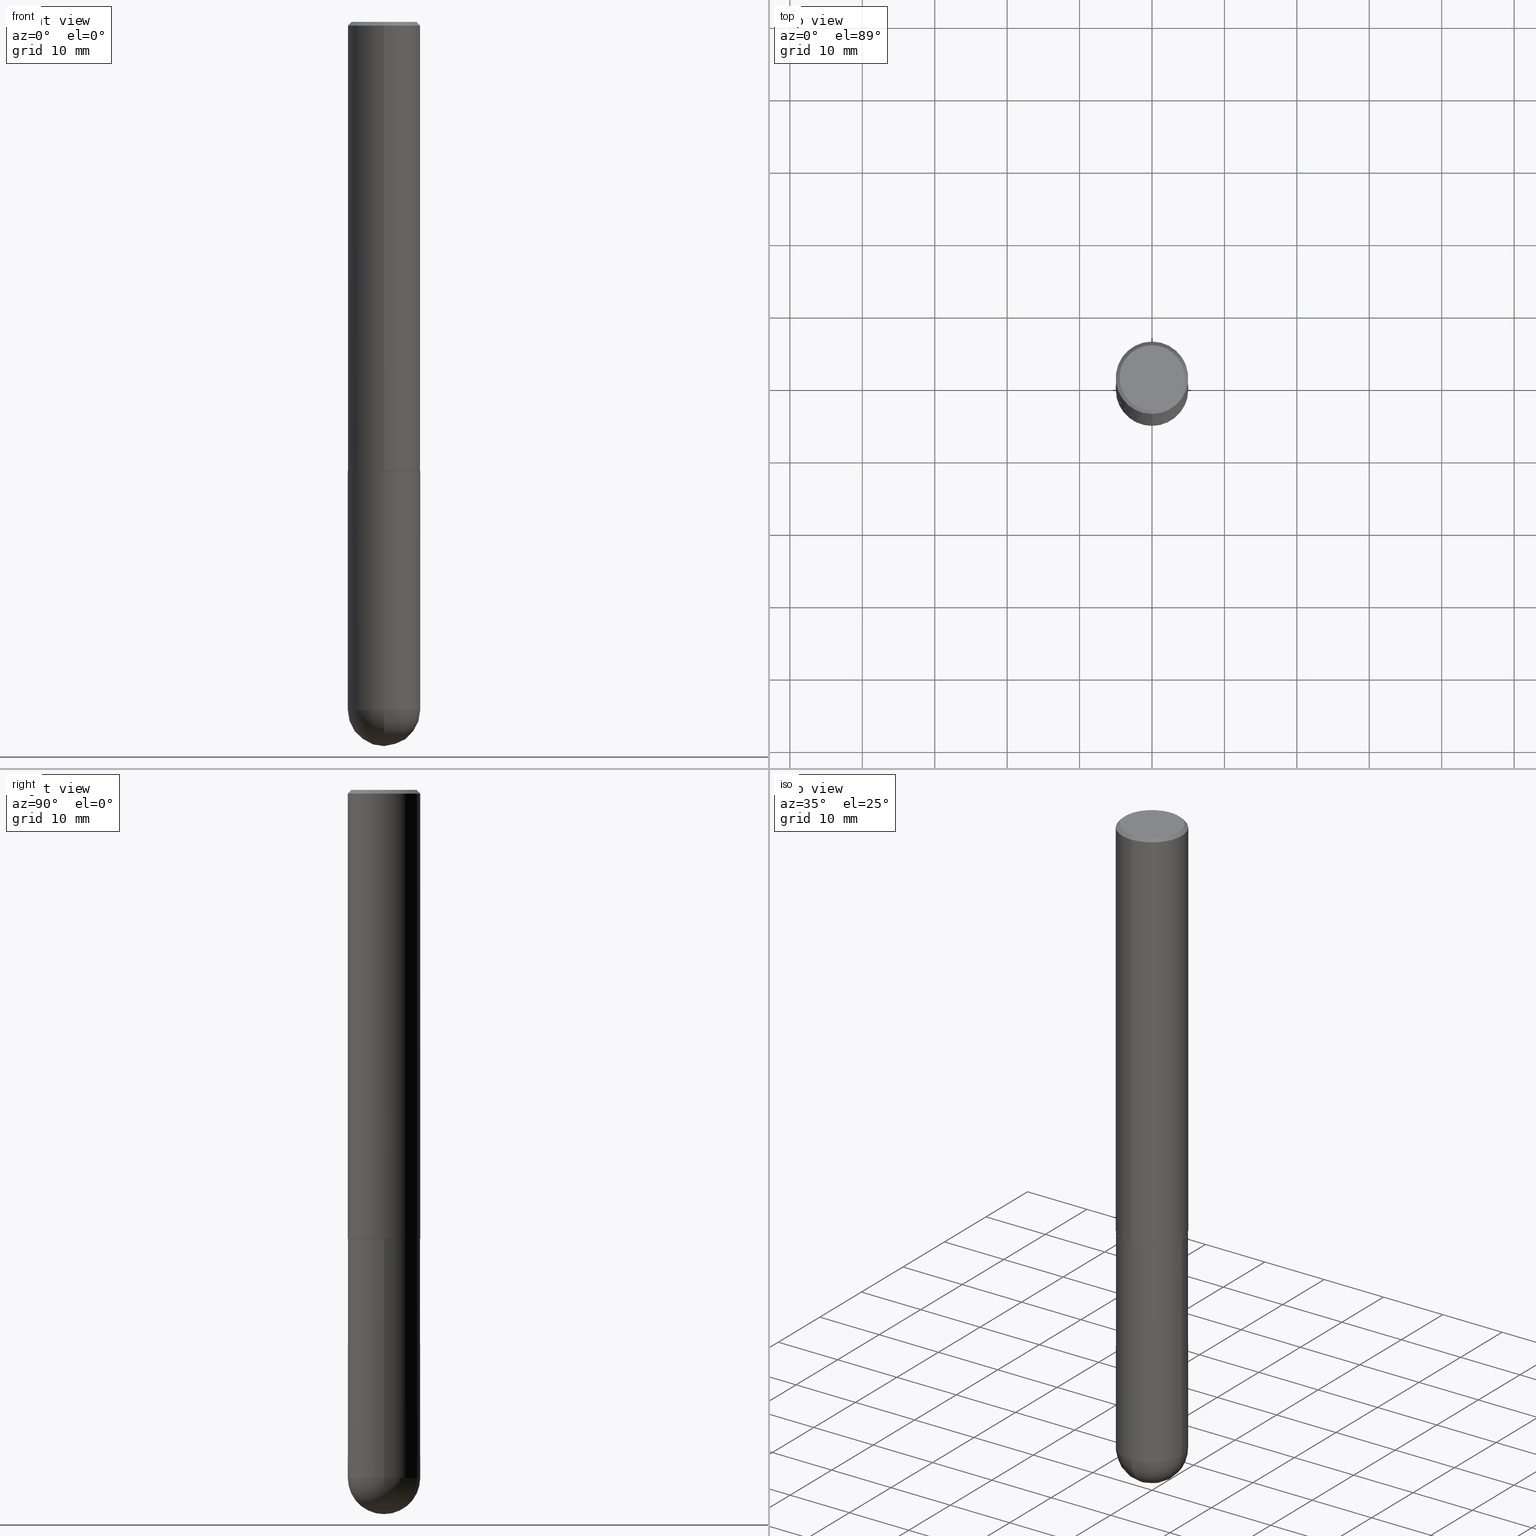
[diagram: canonical four-view strip — front | top / right | iso, engineering-drawing reading convention]
A machine part, canonical four-view strip (front | top / right | iso — engineering-drawing reading convention). The complete STEP part file that produces these views, byte-faithful:
ISO-10303-21;
HEADER;
FILE_DESCRIPTION (( 'STEP AP203' ),
    '1' );
FILE_NAME ('43526.STEP',
    '2024-04-10T11:44:03',
    ( '' ),
    ( '' ),
    'SwSTEP 2.0',
    'SolidWorks 2023',
    '' );
FILE_SCHEMA (( 'CONFIG_CONTROL_DESIGN' ));
ENDSEC;

DATA;
#1 = AXIS2_PLACEMENT_3D ( 'NONE', #242, #405, #209 ) ;
#2 = CARTESIAN_POINT ( 'NONE',  ( 2.498110473991731681E-45, -3.569528848921481712E-31, -1.021939325893990642E-16 ) ) ;
#3 = DIRECTION ( 'NONE',  ( -2.444480225679141495E-29, 3.492897042394238758E-15, 1.000000000000000000 ) ) ;
#4 = DIRECTION ( 'NONE',  ( -1.000000000000000000, 6.982962677686265922E-15, -4.883557194083113462E-29 ) ) ;
#5 = DIRECTION ( 'NONE',  ( -2.445468806185136597E-29, 3.491481338843145583E-15, 1.000000000000000000 ) ) ;
#6 = FACE_OUTER_BOUND ( 'NONE', #410, .T. ) ;
#7 = CLOSED_SHELL ( 'NONE', ( #302, #285, #235, #133, #246, #38, #364, #219 ) ) ;
#8 = DIRECTION ( 'NONE',  ( 1.000000000000000000, 0.000000000000000000, 0.000000000000000000 ) ) ;
#9 = DIRECTION ( 'NONE',  ( -2.444480225679141495E-29, 3.492897042394238758E-15, 1.000000000000000000 ) ) ;
#10 = AXIS2_PLACEMENT_3D ( 'NONE', #39, #4, #392 ) ;
#11 = PERSON_AND_ORGANIZATION ( #183, #92 ) ;
#12 = DIRECTION ( 'NONE',  ( 6.982962677686265133E-15, 1.000000000000000000, -3.491137977679279029E-15 ) ) ;
#13 = CARTESIAN_POINT ( 'NONE',  ( 8.815300377539453183E-29, -1.353284629761424370E-14, -3.740150000000000308 ) ) ;
#14 = APPROVAL_DATE_TIME ( #386, #115 ) ;
#15 = DIRECTION ( 'NONE',  ( 1.000000000000000000, -6.982962677686262766E-15, 0.000000000000000000 ) ) ;
#16 = CC_DESIGN_DATE_AND_TIME_ASSIGNMENT ( #136, #329, ( #311 ) ) ;
#17 = CYLINDRICAL_SURFACE ( 'NONE', #1, 0.1968500000000001915 ) ;
#18 = VERTEX_POINT ( 'NONE', #188 ) ;
#19 = MANIFOLD_SOLID_BREP ( 'Body-Move/Copy2[1]', #57 ) ;
#20 = FACE_OUTER_BOUND ( 'NONE', #273, .T. ) ;
#21 = AXIS2_PLACEMENT_3D ( 'NONE', #348, #249, #282 ) ;
#22 = AXIS2_PLACEMENT_3D ( 'NONE', #217, #349, #220 ) ;
#23 = CARTESIAN_POINT ( 'NONE',  ( -0.1968500000000000250, -9.391806989384456184E-15, -2.440900000000000070 ) ) ;
#24 = EDGE_CURVE ( 'NONE', #255, #179, #284, .T. ) ;
#25 = ORIENTED_EDGE ( 'NONE', *, *, #62, .T. ) ;
#26 = ORIENTED_EDGE ( 'NONE', *, *, #298, .T. ) ;
#27 = COORDINATED_UNIVERSAL_TIME_OFFSET ( 5, 0, .BEHIND. ) ;
#28 = CARTESIAN_POINT ( 'NONE',  ( 0.000000000000000000, 0.000000000000000000, 0.000000000000000000 ) ) ;
#29 = VERTEX_POINT ( 'NONE', #33 ) ;
#30 = PERSON_AND_ORGANIZATION ( #183, #92 ) ;
#31 = EDGE_CURVE ( 'NONE', #339, #29, #198, .T. ) ;
#32 = PRODUCT_DEFINITION_FORMATION_WITH_SPECIFIED_SOURCE ( 'ANY', '', #180, .NOT_KNOWN. ) ;
#33 = CARTESIAN_POINT ( 'NONE',  ( -1.374596203102484021E-15, -0.1968500000000088512, -2.439899999999998847 ) ) ;
#34 = DIRECTION ( 'NONE',  ( -2.444480225679141495E-29, 3.492897042394238758E-15, 1.000000000000000000 ) ) ;
#35 = CARTESIAN_POINT ( 'NONE',  ( 5.964287302634537555E-29, -8.522319493737701952E-15, -2.439899999999999736 ) ) ;
#36 = AXIS2_PLACEMENT_3D ( 'NONE', #336, #55, #211 ) ;
#37 = DIRECTION ( 'NONE',  ( -1.000000000000000000, 6.982962677686265922E-15, -4.876176775795935793E-29 ) ) ;
#38 = ADVANCED_FACE ( 'NONE', ( #317 ), #343, .T. ) ;
#39 = CARTESIAN_POINT ( 'NONE',  ( 8.815300377539453183E-29, -1.353284629761424370E-14, -3.740150000000000308 ) ) ;
#40 = DIRECTION ( 'NONE',  ( 2.444480225679141495E-29, -3.492897042394238758E-15, -1.000000000000000000 ) ) ;
#41 = CARTESIAN_POINT ( 'NONE',  ( -1.374596203102542594E-15, -0.1968500000000001915, 6.875767827953065398E-16 ) ) ;
#42 =( NAMED_UNIT ( * ) PLANE_ANGLE_UNIT ( ) SI_UNIT ( $, .RADIAN. ) );
#43 = LINE ( 'NONE', #323, #52 ) ;
#44 = APPLICATION_PROTOCOL_DEFINITION ( 'international standard', 'config_control_design', 1994, #144 ) ;
#45 = CARTESIAN_POINT ( 'NONE',  ( 5.969144809017299038E-29, -8.522356799982232966E-15, -2.440900000000000070 ) ) ;
#46 = CIRCLE ( 'NONE', #312, 0.1968500000000000527 ) ;
#47 = DIRECTION ( 'NONE',  ( 4.937700262164545676E-15, 0.7071067811865447972, -0.7071067811865502373 ) ) ;
#48 = CALENDAR_DATE ( 2024, 10, 4 ) ;
#49 = FACE_OUTER_BOUND ( 'NONE', #189, .T. ) ;
#50 = DIRECTION ( 'NONE',  ( -4.851104656540961908E-15, -0.7071067811865496822, -0.7071067811865453523 ) ) ;
#51 = EDGE_CURVE ( 'NONE', #341, #270, #127, .T. ) ;
#52 = VECTOR ( 'NONE', #137, 39.37007874015748143 ) ;
#53 = ORIENTED_EDGE ( 'NONE', *, *, #75, .F. ) ;
#54 = ORIENTED_EDGE ( 'NONE', *, *, #31, .F. ) ;
#55 = DIRECTION ( 'NONE',  ( -2.444480225679141495E-29, 3.492897042394238758E-15, 1.000000000000000000 ) ) ;
#56 = ORIENTED_EDGE ( 'NONE', *, *, #31, .T. ) ;
#57 = CLOSED_SHELL ( 'NONE', ( #68, #290, #169, #108, #385 ) ) ;
#58 = VECTOR ( 'NONE', #47, 39.37007874015748143 ) ;
#59 = ORIENTED_EDGE ( 'NONE', *, *, #370, .T. ) ;
#60 = LINE ( 'NONE', #340, #266 ) ;
#61 = ORIENTED_EDGE ( 'NONE', *, *, #298, .F. ) ;
#62 = EDGE_CURVE ( 'NONE', #148, #29, #280, .T. ) ;
#63 = ORIENTED_EDGE ( 'NONE', *, *, #118, .T. ) ;
#64 = CIRCLE ( 'NONE', #251, 0.1768500000000001182 ) ;
#65 = DESIGN_CONTEXT ( 'detailed design', #72, 'design' ) ;
#66 = CARTESIAN_POINT ( 'NONE',  ( 8.815300377539453183E-29, -1.353284629761424370E-14, -3.740150000000000308 ) ) ;
#67 = DIRECTION ( 'NONE',  ( -2.444480225679141495E-29, 3.492897042394238758E-15, 1.000000000000000000 ) ) ;
#68 = ADVANCED_FACE ( 'NONE', ( #156 ), #128, .T. ) ;
#69 = ORIENTED_EDGE ( 'NONE', *, *, #95, .T. ) ;
#70 = VECTOR ( 'NONE', #163, 39.37007874015748143 ) ;
#71 = DIRECTION ( 'NONE',  ( -6.982962677686265922E-15, -1.000000000000000000, 4.184602492209747448E-15 ) ) ;
#72 = APPLICATION_CONTEXT ( 'configuration controlled 3d designs of mechanical parts and assemblies' ) ;
#73 = DIRECTION ( 'NONE',  ( 0.000000000000000000, 0.000000000000000000, 1.000000000000000000 ) ) ;
#74 = DIRECTION ( 'NONE',  ( 2.444480225679141214E-29, -3.492897042394238758E-15, -1.000000000000000000 ) ) ;
#75 = EDGE_CURVE ( 'NONE', #29, #339, #124, .T. ) ;
#76 = PLANE ( 'NONE',  #337 ) ;
#77 =( LENGTH_UNIT ( ) NAMED_UNIT ( * ) SI_UNIT ( $, .METRE. ) );
#78 = DIRECTION ( 'NONE',  ( -7.105427357601001070E-15, -1.000000000000000000, 0.000000000000000000 ) ) ;
#79 = COORDINATED_UNIVERSAL_TIME_OFFSET ( 5, 0, .BEHIND. ) ;
#80 = DIRECTION ( 'NONE',  ( -2.444480225679141495E-29, 3.492897042394238758E-15, 1.000000000000000000 ) ) ;
#81 = AXIS2_PLACEMENT_3D ( 'NONE', #99, #320, #37 ) ;
#82 = SPHERICAL_SURFACE ( 'NONE', #10, 0.1968500000000001360 ) ;
#83 = CARTESIAN_POINT ( 'NONE',  ( 9.146420155453340551E-29, -1.305866392947419340E-14, -3.740150000000000752 ) ) ;
#84 = CARTESIAN_POINT ( 'NONE',  ( -1.350489030861325626E-15, -0.1968500000000001082, -0.01999999999999935510 ) ) ;
#85 = ORIENTED_EDGE ( 'NONE', *, *, #151, .F. ) ;
#86 = VECTOR ( 'NONE', #369, 39.37007874015748854 ) ;
#87 = ORIENTED_EDGE ( 'NONE', *, *, #208, .T. ) ;
#88 = APPROVAL ( #186, 'UNSPECIFIED' ) ;
#89 = ORIENTED_EDGE ( 'NONE', *, *, #228, .T. ) ;
#90 = EDGE_LOOP ( 'NONE', ( #236, #56, #150, #411 ) ) ;
#91 = AXIS2_PLACEMENT_3D ( 'NONE', #154, #314, #376 ) ;
#92 = ORGANIZATION ( 'UNSPECIFIED', 'UNSPECIFIED', '' ) ;
#93 = DIRECTION ( 'NONE',  ( 1.000000000000000000, -6.982962677686266711E-15, 4.876176775795935793E-29 ) ) ;
#94 = ORIENTED_EDGE ( 'NONE', *, *, #268, .F. ) ;
#95 = EDGE_CURVE ( 'NONE', #345, #269, #396, .T. ) ;
#96 = ORIENTED_EDGE ( 'NONE', *, *, #101, .F. ) ;
#97 = FACE_OUTER_BOUND ( 'NONE', #404, .T. ) ;
#98 = UNCERTAINTY_MEASURE_WITH_UNIT (LENGTH_MEASURE( 1.000000000000000082E-05 ), #383, 'distance_accuracy_value', 'NONE');
#99 = CARTESIAN_POINT ( 'NONE',  ( 1.374596203102601167E-15, 0.1968499999999914762, -2.440900000000000514 ) ) ;
#100 = DATE_AND_TIME ( #375, #245 ) ;
#101 = EDGE_CURVE ( 'NONE', #205, #18, #153, .T. ) ;
#102 = DIRECTION ( 'NONE',  ( -6.982962677686265922E-15, -1.000000000000000000, 3.492897042394239153E-15 ) ) ;
#103 = FACE_OUTER_BOUND ( 'NONE', #306, .T. ) ;
#104 = PERSON_AND_ORGANIZATION ( #183, #92 ) ;
#105 = ORIENTED_EDGE ( 'NONE', *, *, #173, .T. ) ;
#106 = AXIS2_PLACEMENT_3D ( 'NONE', #45, #264, #394 ) ;
#107 = CARTESIAN_POINT ( 'NONE',  ( -1.398703375343667858E-15, -0.1968500000000133754, -3.740150000000000308 ) ) ;
#108 = ADVANCED_FACE ( 'NONE', ( #97 ), #214, .F. ) ;
#109 = APPROVAL_STATUS ( 'not_yet_approved' ) ;
#110 = DIRECTION ( 'NONE',  ( -2.444480225679141495E-29, 3.492897042394238758E-15, 1.000000000000000000 ) ) ;
#111 = DIRECTION ( 'NONE',  ( 6.982962677686265133E-15, 1.000000000000000000, -3.491137977679279029E-15 ) ) ;
#112 = AXIS2_PLACEMENT_3D ( 'NONE', #66, #279, #313 ) ;
#113 = DIRECTION ( 'NONE',  ( 1.000000000000000000, -6.982962677686269866E-15, 0.000000000000000000 ) ) ;
#114 = CONICAL_SURFACE ( 'NONE', #326, 0.1958499999999999963, 0.7853981633974311816 ) ;
#115 = APPROVAL ( #109, 'UNSPECIFIED' ) ;
#116 = PLANE ( 'NONE',  #378 ) ;
#117 = VERTEX_POINT ( 'NONE', #159 ) ;
#118 = EDGE_CURVE ( 'NONE', #269, #345, #64, .T. ) ;
#119 = AXIS2_PLACEMENT_3D ( 'NONE', #354, #80, #258 ) ;
#120 = ORIENTED_EDGE ( 'NONE', *, *, #75, .T. ) ;
#121 = ORIENTED_EDGE ( 'NONE', *, *, #95, .F. ) ;
#122 = FACE_OUTER_BOUND ( 'NONE', #238, .T. ) ;
#123 = ORIENTED_EDGE ( 'NONE', *, *, #228, .F. ) ;
#124 = CIRCLE ( 'NONE', #271, 0.1968500000000003303 ) ;
#125 = CONICAL_SURFACE ( 'NONE', #344, 0.1968500000000000527, 0.7853981633974479459 ) ;
#126 = EDGE_CURVE ( 'NONE', #207, #148, #352, .T. ) ;
#127 = LINE ( 'NONE', #129, #299 ) ;
#128 = CYLINDRICAL_SURFACE ( 'NONE', #21, 0.1968499999999999694 ) ;
#129 = CARTESIAN_POINT ( 'NONE',  ( -0.1968499999999999694, 1.398703375343756999E-15, -9.682923725166782276E-30 ) ) ;
#130 = CIRCLE ( 'NONE', #106, 0.1968500000000000250 ) ;
#131 = ORIENTED_EDGE ( 'NONE', *, *, #62, .F. ) ;
#132 = DIRECTION ( 'NONE',  ( -6.982962677686265922E-15, -1.000000000000000000, 3.492897042394239153E-15 ) ) ;
#133 = ADVANCED_FACE ( 'NONE', ( #152 ), #125, .T. ) ;
#134 = CARTESIAN_POINT ( 'NONE',  ( 1.398703375343789145E-15, 0.1968499999999918093, -2.439900000000000624 ) ) ;
#135 = APPROVAL_STATUS ( 'not_yet_approved' ) ;
#136 = DATE_AND_TIME ( #48, #389 ) ;
#137 = DIRECTION ( 'NONE',  ( -2.444480225679141495E-29, 3.492897042394238758E-15, 1.000000000000000000 ) ) ;
#138 = CARTESIAN_POINT ( 'NONE',  ( 9.146420155453340551E-29, -1.305866392947419340E-14, -3.740150000000000752 ) ) ;
#139 = FACE_OUTER_BOUND ( 'NONE', #185, .T. ) ;
#140 = PERSON_AND_ORGANIZATION_ROLE ( 'creator' ) ;
#141 = ADVANCED_BREP_SHAPE_REPRESENTATION ( '43526', ( #19, #277, #366 ), #371 ) ;
#142 = CC_DESIGN_PERSON_AND_ORGANIZATION_ASSIGNMENT ( #11, #160, ( #180 ) ) ;
#143 = LINE ( 'NONE', #84, #167 ) ;
#144 = APPLICATION_CONTEXT ( 'configuration controlled 3d designs of mechanical parts and assemblies' ) ;
#145 = EDGE_CURVE ( 'NONE', #270, #117, #408, .T. ) ;
#146 = ORIENTED_EDGE ( 'NONE', *, *, #268, .T. ) ;
#147 = AXIS2_PLACEMENT_3D ( 'NONE', #2, #34, #102 ) ;
#148 = VERTEX_POINT ( 'NONE', #357 ) ;
#149 = ORIENTED_EDGE ( 'NONE', *, *, #126, .F. ) ;
#150 = ORIENTED_EDGE ( 'NONE', *, *, #361, .T. ) ;
#151 = EDGE_CURVE ( 'NONE', #148, #207, #172, .T. ) ;
#152 = FACE_OUTER_BOUND ( 'NONE', #372, .T. ) ;
#153 = CIRCLE ( 'NONE', #22, 0.1968499999999999694 ) ;
#154 = CARTESIAN_POINT ( 'NONE',  ( 5.966731782860215927E-29, -8.525812390780097403E-15, -2.440900000000000070 ) ) ;
#155 = EDGE_CURVE ( 'NONE', #240, #307, #46, .T. ) ;
#156 = FACE_OUTER_BOUND ( 'NONE', #252, .T. ) ;
#157 = DIRECTION ( 'NONE',  ( -6.982962677686265133E-15, -1.000000000000000000, 4.163344669033668535E-15 ) ) ;
#158 = SECURITY_CLASSIFICATION ( '', '', #359 ) ;
#159 = CARTESIAN_POINT ( 'NONE',  ( 0.1968500000000000250, -9.896953003084774574E-15, -2.440900000000000070 ) ) ;
#160 = PERSON_AND_ORGANIZATION_ROLE ( 'design_owner' ) ;
#161 = CARTESIAN_POINT ( 'NONE',  ( 1.374596203102542200E-15, 0.1968499999999999694, -0.02000000000000072900 ) ) ;
#162 = APPROVAL ( #135, 'UNSPECIFIED' ) ;
#163 = DIRECTION ( 'NONE',  ( -2.444480225679141495E-29, 3.492897042394238758E-15, 1.000000000000000000 ) ) ;
#164 = CARTESIAN_POINT ( 'NONE',  ( 0.000000000000000000, 0.000000000000000000, 0.000000000000000000 ) ) ;
#165 = FACE_OUTER_BOUND ( 'NONE', #406, .T. ) ;
#166 = VECTOR ( 'NONE', #409, 39.37007874015748854 ) ;
#167 = VECTOR ( 'NONE', #50, 39.37007874015748143 ) ;
#168 = DIRECTION ( 'NONE',  ( -1.000000000000000000, 6.982962677686265922E-15, -4.883557194083113462E-29 ) ) ;
#169 = ADVANCED_FACE ( 'NONE', ( #200 ), #294, .T. ) ;
#170 = APPROVAL_ROLE ( '' ) ;
#171 = CARTESIAN_POINT ( 'NONE',  ( 1.234936949548816984E-15, 0.1768500000000001182, -6.688158082421210493E-16 ) ) ;
#172 = CIRCLE ( 'NONE', #119, 0.1958499999999999963 ) ;
#173 = EDGE_CURVE ( 'NONE', #269, #307, #143, .T. ) ;
#174 = CARTESIAN_POINT ( 'NONE',  ( -1.281884050883610886E-15, -0.1768500000000001182, 5.155249093580226748E-16 ) ) ;
#175 = PERSON_AND_ORGANIZATION ( #183, #92 ) ;
#176 = EDGE_LOOP ( 'NONE', ( #365, #342, #25, #54 ) ) ;
#177 = AXIS2_PLACEMENT_3D ( 'NONE', #224, #363, #201 ) ;
#178 = ORIENTED_EDGE ( 'NONE', *, *, #145, .F. ) ;
#179 = VERTEX_POINT ( 'NONE', #395 ) ;
#180 = PRODUCT ( '43526', '43526', '', ( #356 ) ) ;
#181 = DIRECTION ( 'NONE',  ( -2.445468806185136877E-29, 3.491481338843145188E-15, 1.000000000000000000 ) ) ;
#182 = ORIENTED_EDGE ( 'NONE', *, *, #118, .F. ) ;
#183 = PERSON ( 'UNSPECIFIED', 'UNSPECIFIED', 'UNSPECIFIED', ('UNSPECIFIED'), ('UNSPECIFIED'), ('UNSPECIFIED') ) ;
#184 = DATE_AND_TIME ( #308, #331 ) ;
#185 = EDGE_LOOP ( 'NONE', ( #303, #247, #123, #276 ) ) ;
#186 = APPROVAL_STATUS ( 'not_yet_approved' ) ;
#187 = CC_DESIGN_PERSON_AND_ORGANIZATION_ASSIGNMENT ( #175, #412, ( #158 ) ) ;
#188 = CARTESIAN_POINT ( 'NONE',  ( 0.1968499999999999694, -1.216510656783075637E-14, -3.740150000000000752 ) ) ;
#189 = EDGE_LOOP ( 'NONE', ( #69, #63 ) ) ;
#190 = CARTESIAN_POINT ( 'NONE',  ( 5.964287302634537555E-29, -8.522319493737701952E-15, -2.439899999999999736 ) ) ;
#191 = PERSON_AND_ORGANIZATION ( #183, #92 ) ;
#192 = DIRECTION ( 'NONE',  ( -6.982962677686265133E-15, -1.000000000000000000, 4.163344669033668535E-15 ) ) ;
#193 = EDGE_CURVE ( 'NONE', #339, #240, #43, .T. ) ;
#194 = CARTESIAN_POINT ( 'NONE',  ( 1.304766576325679493E-15, 0.1768500000000001182, -7.199127745368207046E-16 ) ) ;
#195 = APPLICATION_PROTOCOL_DEFINITION ( 'international standard', 'config_control_design', 1994, #72 ) ;
#196 = CARTESIAN_POINT ( 'NONE',  ( 4.888960451358293429E-31, -6.985794084788491174E-17, -0.02000000000000004205 ) ) ;
#197 = CARTESIAN_POINT ( 'NONE',  ( 9.305107886238245984E-29, -1.420809081304490838E-14, -3.937000000000000721 ) ) ;
#198 = CIRCLE ( 'NONE', #221, 0.1968500000000003303 ) ;
#199 = EDGE_CURVE ( 'NONE', #179, #341, #259, .T. ) ;
#200 = FACE_OUTER_BOUND ( 'NONE', #283, .T. ) ;
#201 = DIRECTION ( 'NONE',  ( 1.000000000000000000, -6.982962677686269866E-15, 0.000000000000000000 ) ) ;
#202 = CIRCLE ( 'NONE', #177, 0.1968499999999999694 ) ;
#203 = LOCAL_TIME ( 7, 44, 3.000000000000000000, #79 ) ;
#204 = ORIENTED_EDGE ( 'NONE', *, *, #101, .T. ) ;
#205 = VERTEX_POINT ( 'NONE', #107 ) ;
#206 = DIRECTION ( 'NONE',  ( -6.982962677686265922E-15, -1.000000000000000000, 3.492897042394238758E-15 ) ) ;
#207 = VERTEX_POINT ( 'NONE', #328 ) ;
#208 = EDGE_CURVE ( 'NONE', #18, #179, #403, .T. ) ;
#209 = DIRECTION ( 'NONE',  ( -6.982962677686265133E-15, -1.000000000000000000, 3.492897042394238758E-15 ) ) ;
#210 = CIRCLE ( 'NONE', #36, 0.1968500000000000527 ) ;
#211 = DIRECTION ( 'NONE',  ( -6.982962677686265133E-15, -1.000000000000000000, 3.491137977679279029E-15 ) ) ;
#212 = ORIENTED_EDGE ( 'NONE', *, *, #151, .T. ) ;
#213 = ORIENTED_EDGE ( 'NONE', *, *, #208, .F. ) ;
#214 = PLANE ( 'NONE',  #81 ) ;
#215 = CC_DESIGN_SECURITY_CLASSIFICATION ( #158, ( #32 ) ) ;
#216 = ORIENTED_EDGE ( 'NONE', *, *, #51, .F. ) ;
#217 = CARTESIAN_POINT ( 'NONE',  ( 9.146420155453340551E-29, -1.305866392947419340E-14, -3.740150000000000752 ) ) ;
#218 = DIRECTION ( 'NONE',  ( -6.982962677686265922E-15, -1.000000000000000000, 4.184602492209747448E-15 ) ) ;
#219 = ADVANCED_FACE ( 'NONE', ( #49 ), #116, .F. ) ;
#220 = DIRECTION ( 'NONE',  ( 1.000000000000000000, -6.982962677686269866E-15, 0.000000000000000000 ) ) ;
#221 = AXIS2_PLACEMENT_3D ( 'NONE', #190, #67, #192 ) ;
#222 = AXIS2_PLACEMENT_3D ( 'NONE', #13, #168, #267 ) ;
#223 = APPROVAL_PERSON_ORGANIZATION ( #353, #162, #232 ) ;
#224 = CARTESIAN_POINT ( 'NONE',  ( 9.146420155453340551E-29, -1.305866392947419340E-14, -3.740150000000000752 ) ) ;
#225 = CARTESIAN_POINT ( 'NONE',  ( 5.966731782860215927E-29, -8.525812390780097403E-15, -2.440900000000000070 ) ) ;
#226 = COORDINATED_UNIVERSAL_TIME_OFFSET ( 5, 0, .BEHIND. ) ;
#227 = DIRECTION ( 'NONE',  ( -6.982962677686265133E-15, -1.000000000000000000, 3.492897042394238758E-15 ) ) ;
#228 = EDGE_CURVE ( 'NONE', #341, #205, #202, .T. ) ;
#229 = CARTESIAN_POINT ( 'NONE',  ( 4.888960451358293429E-31, -6.985794084788491174E-17, -0.02000000000000004205 ) ) ;
#230 = AXIS2_PLACEMENT_3D ( 'NONE', #325, #355, #78 ) ;
#231 = LOCAL_TIME ( 7, 44, 3.000000000000000000, #226 ) ;
#232 = APPROVAL_ROLE ( '' ) ;
#233 = CARTESIAN_POINT ( 'NONE',  ( 4.888960451358293429E-31, -6.985794084788491174E-17, -0.02000000000000004205 ) ) ;
#234 = DIRECTION ( 'NONE',  ( 6.982962677686265922E-15, 1.000000000000000000, -3.492897042394238758E-15 ) ) ;
#235 = ADVANCED_FACE ( 'NONE', ( #165 ), #397, .T. ) ;
#236 = ORIENTED_EDGE ( 'NONE', *, *, #193, .F. ) ;
#237 = ORIENTED_EDGE ( 'NONE', *, *, #145, .T. ) ;
#238 = EDGE_LOOP ( 'NONE', ( #216, #89, #204, #316, #178 ) ) ;
#239 = PERSON_AND_ORGANIZATION ( #183, #92 ) ;
#240 = VERTEX_POINT ( 'NONE', #161 ) ;
#241 = CARTESIAN_POINT ( 'NONE',  ( 1.391597947986215747E-15, 0.1958499999999914754, -2.440900000000000958 ) ) ;
#242 = CARTESIAN_POINT ( 'NONE',  ( 0.000000000000000000, 0.000000000000000000, 0.000000000000000000 ) ) ;
#243 = AXIS2_PLACEMENT_3D ( 'NONE', #292, #9, #227 ) ;
#244 = ORIENTED_EDGE ( 'NONE', *, *, #253, .F. ) ;
#245 = LOCAL_TIME ( 7, 44, 3.000000000000000000, #281 ) ;
#246 = ADVANCED_FACE ( 'NONE', ( #289 ), #391, .T. ) ;
#247 = ORIENTED_EDGE ( 'NONE', *, *, #253, .T. ) ;
#248 = APPROVAL_DATE_TIME ( #184, #88 ) ;
#249 = DIRECTION ( 'NONE',  ( -2.445468806185136597E-29, 3.491481338843145583E-15, 1.000000000000000000 ) ) ;
#250 = DIRECTION ( 'NONE',  ( -2.445468806185136877E-29, 3.491481338843145188E-15, 1.000000000000000000 ) ) ;
#251 = AXIS2_PLACEMENT_3D ( 'NONE', #288, #3, #132 ) ;
#252 = EDGE_LOOP ( 'NONE', ( #367, #274, #94, #335, #87 ) ) ;
#253 = EDGE_CURVE ( 'NONE', #255, #205, #286, .T. ) ;
#254 = PERSON_AND_ORGANIZATION_ROLE ( 'creator' ) ;
#255 = VERTEX_POINT ( 'NONE', #197 ) ;
#256 = CARTESIAN_POINT ( 'NONE',  ( -0.1968499999999999694, -9.391806989384456184E-15, -3.740150000000000752 ) ) ;
#257 = APPROVAL_DATE_TIME ( #322, #162 ) ;
#258 = DIRECTION ( 'NONE',  ( -6.982962677686265922E-15, -1.000000000000000000, 4.184602492209747448E-15 ) ) ;
#259 = CIRCLE ( 'NONE', #278, 0.1968499999999999694 ) ;
#260 = CARTESIAN_POINT ( 'NONE',  ( 1.374596203102542200E-15, 0.1968499999999999694, -0.02000000000000072900 ) ) ;
#261 = COORDINATED_UNIVERSAL_TIME_OFFSET ( 5, 0, .BEHIND. ) ;
#262 = DIRECTION ( 'NONE',  ( 1.000000000000000000, -6.982962677686269866E-15, 0.000000000000000000 ) ) ;
#263 = CC_DESIGN_DATE_AND_TIME_ASSIGNMENT ( #100, #346, ( #158 ) ) ;
#264 = DIRECTION ( 'NONE',  ( -2.445468806185136597E-29, 3.491481338843145583E-15, 1.000000000000000000 ) ) ;
#265 = DIRECTION ( 'NONE',  ( 2.444480225679141495E-29, -3.492897042394238758E-15, -1.000000000000000000 ) ) ;
#266 = VECTOR ( 'NONE', #181, 39.37007874015748143 ) ;
#267 = DIRECTION ( 'NONE',  ( 6.982962677686265922E-15, 1.000000000000000000, -2.775563112689114723E-15 ) ) ;
#268 = EDGE_CURVE ( 'NONE', #117, #270, #130, .T. ) ;
#269 = VERTEX_POINT ( 'NONE', #174 ) ;
#270 = VERTEX_POINT ( 'NONE', #23 ) ;
#271 = AXIS2_PLACEMENT_3D ( 'NONE', #35, #381, #157 ) ;
#272 = PRODUCT_RELATED_PRODUCT_CATEGORY ( 'detail', '', ( #180 ) ) ;
#273 = EDGE_LOOP ( 'NONE', ( #120, #332, #301, #310 ) ) ;
#274 = ORIENTED_EDGE ( 'NONE', *, *, #51, .T. ) ;
#275 = DIRECTION ( 'NONE',  ( -2.445468806185136597E-29, 3.491481338843145583E-15, 1.000000000000000000 ) ) ;
#276 = ORIENTED_EDGE ( 'NONE', *, *, #199, .F. ) ;
#277 = MANIFOLD_SOLID_BREP ( 'Body-Move/Copy2[2]', #7 ) ;
#278 = AXIS2_PLACEMENT_3D ( 'NONE', #83, #399, #262 ) ;
#279 = DIRECTION ( 'NONE',  ( 1.000000000000000000, -6.982962677686265922E-15, 4.883557194083112340E-29 ) ) ;
#280 = LINE ( 'NONE', #380, #166 ) ;
#281 = COORDINATED_UNIVERSAL_TIME_OFFSET ( 5, 0, .BEHIND. ) ;
#282 = DIRECTION ( 'NONE',  ( 1.000000000000000000, -6.982962677686266711E-15, 4.876176775795935793E-29 ) ) ;
#283 = EDGE_LOOP ( 'NONE', ( #244, #368, #213, #96 ) ) ;
#284 = CIRCLE ( 'NONE', #112, 0.1968500000000001360 ) ;
#285 = ADVANCED_FACE ( 'NONE', ( #20 ), #17, .T. ) ;
#286 = CIRCLE ( 'NONE', #230, 0.1968500000000001360 ) ;
#287 = APPROVAL_ROLE ( '' ) ;
#288 = CARTESIAN_POINT ( 'NONE',  ( 2.498110473991731681E-45, -3.569528848921481712E-31, -1.021939325893990642E-16 ) ) ;
#289 = FACE_OUTER_BOUND ( 'NONE', #90, .T. ) ;
#290 = ADVANCED_FACE ( 'NONE', ( #139 ), #82, .T. ) ;
#291 = PERSON_AND_ORGANIZATION ( #183, #92 ) ;
#292 = CARTESIAN_POINT ( 'NONE',  ( 0.000000000000000000, 0.000000000000000000, 0.000000000000000000 ) ) ;
#293 = AXIS2_PLACEMENT_3D ( 'NONE', #384, #351, #71 ) ;
#294 = SPHERICAL_SURFACE ( 'NONE', #222, 0.1968500000000001360 ) ;
#295 = LINE ( 'NONE', #260, #58 ) ;
#296 = CALENDAR_DATE ( 2024, 10, 4 ) ;
#297 = CARTESIAN_POINT ( 'NONE',  ( 5.969144809017299038E-29, -8.522356799982232966E-15, -2.440900000000000070 ) ) ;
#298 = EDGE_CURVE ( 'NONE', #345, #240, #295, .T. ) ;
#299 = VECTOR ( 'NONE', #250, 39.37007874015748143 ) ;
#300 = APPROVAL_PERSON_ORGANIZATION ( #30, #88, #287 ) ;
#301 = ORIENTED_EDGE ( 'NONE', *, *, #370, .F. ) ;
#302 = ADVANCED_FACE ( 'NONE', ( #103 ), #114, .T. ) ;
#303 = ORIENTED_EDGE ( 'NONE', *, *, #24, .F. ) ;
#304 = PRODUCT_DEFINITION_SHAPE ( 'NONE', 'NONE',  #311 ) ;
#305 = AXIS2_PLACEMENT_3D ( 'NONE', #196, #40, #12 ) ;
#306 = EDGE_LOOP ( 'NONE', ( #212, #402, #53, #131 ) ) ;
#307 = VERTEX_POINT ( 'NONE', #350 ) ;
#308 = CALENDAR_DATE ( 2024, 10, 4 ) ;
#309 = CYLINDRICAL_SURFACE ( 'NONE', #318, 0.1968499999999999694 ) ;
#310 = ORIENTED_EDGE ( 'NONE', *, *, #361, .F. ) ;
#311 = PRODUCT_DEFINITION ( 'UNKNOWN', '', #32, #65 ) ;
#312 = AXIS2_PLACEMENT_3D ( 'NONE', #233, #110, #387 ) ;
#313 = DIRECTION ( 'NONE',  ( 6.982962677686265922E-15, 1.000000000000000000, 0.000000000000000000 ) ) ;
#314 = DIRECTION ( 'NONE',  ( -2.444480225679141495E-29, 3.492897042394238758E-15, 1.000000000000000000 ) ) ;
#315 = CC_DESIGN_PERSON_AND_ORGANIZATION_ASSIGNMENT ( #239, #382, ( #32 ) ) ;
#316 = ORIENTED_EDGE ( 'NONE', *, *, #377, .T. ) ;
#317 = FACE_OUTER_BOUND ( 'NONE', #176, .T. ) ;
#318 = AXIS2_PLACEMENT_3D ( 'NONE', #28, #275, #93 ) ;
#319 =( NAMED_UNIT ( * ) SI_UNIT ( $, .STERADIAN. ) SOLID_ANGLE_UNIT ( ) );
#320 = DIRECTION ( 'NONE',  ( 2.438088387897960049E-29, -3.491481338843145188E-15, -1.000000000000000000 ) ) ;
#321 = LINE ( 'NONE', #41, #70 ) ;
#322 = DATE_AND_TIME ( #327, #203 ) ;
#323 = CARTESIAN_POINT ( 'NONE',  ( 1.398703375343758182E-15, 0.1968500000000001915, -6.875767827953065398E-16 ) ) ;
#324 = CARTESIAN_POINT ( 'NONE',  ( 5.966731782860215927E-29, -8.525812390780097403E-15, -2.440900000000000070 ) ) ;
#325 = CARTESIAN_POINT ( 'NONE',  ( 8.815300377539453183E-29, -1.353284629761424370E-14, -3.740150000000000308 ) ) ;
#326 = AXIS2_PLACEMENT_3D ( 'NONE', #225, #390, #218 ) ;
#327 = CALENDAR_DATE ( 2024, 10, 4 ) ;
#328 = CARTESIAN_POINT ( 'NONE',  ( 1.395150661665018026E-15, 0.1958499999999914754, -2.440900000000000958 ) ) ;
#329 = DATE_TIME_ROLE ( 'creation_date' ) ;
#330 = DIRECTION ( 'NONE',  ( -2.445468806185136597E-29, 3.491481338843145583E-15, 1.000000000000000000 ) ) ;
#331 = LOCAL_TIME ( 7, 44, 3.000000000000000000, #27 ) ;
#332 = ORIENTED_EDGE ( 'NONE', *, *, #193, .T. ) ;
#333 = CC_DESIGN_PERSON_AND_ORGANIZATION_ASSIGNMENT ( #104, #254, ( #32 ) ) ;
#334 = DIRECTION ( 'NONE',  ( -2.444480225679141214E-29, 3.492897042394238758E-15, 1.000000000000000000 ) ) ;
#335 = ORIENTED_EDGE ( 'NONE', *, *, #377, .F. ) ;
#336 = CARTESIAN_POINT ( 'NONE',  ( 4.888960451358293429E-31, -6.985794084788491174E-17, -0.02000000000000004205 ) ) ;
#337 = AXIS2_PLACEMENT_3D ( 'NONE', #324, #334, #206 ) ;
#338 = APPROVAL_PERSON_ORGANIZATION ( #191, #115, #170 ) ;
#339 = VERTEX_POINT ( 'NONE', #134 ) ;
#340 = CARTESIAN_POINT ( 'NONE',  ( 0.1968499999999999694, -1.374596203102541411E-15, 9.598753983154298056E-30 ) ) ;
#341 = VERTEX_POINT ( 'NONE', #256 ) ;
#342 = ORIENTED_EDGE ( 'NONE', *, *, #126, .T. ) ;
#343 = CONICAL_SURFACE ( 'NONE', #91, 0.1958499999999999963, 0.7853981633974311816 ) ;
#344 = AXIS2_PLACEMENT_3D ( 'NONE', #229, #265, #111 ) ;
#345 = VERTEX_POINT ( 'NONE', #194 ) ;
#346 = DATE_TIME_ROLE ( 'classification_date' ) ;
#347 = CC_DESIGN_PERSON_AND_ORGANIZATION_ASSIGNMENT ( #291, #140, ( #311 ) ) ;
#348 = CARTESIAN_POINT ( 'NONE',  ( 0.000000000000000000, 0.000000000000000000, 0.000000000000000000 ) ) ;
#349 = DIRECTION ( 'NONE',  ( -2.445468806185136597E-29, 3.491481338843145583E-15, 1.000000000000000000 ) ) ;
#350 = CARTESIAN_POINT ( 'NONE',  ( -1.350489030861325626E-15, -0.1968500000000001082, -0.01999999999999935510 ) ) ;
#351 = DIRECTION ( 'NONE',  ( -2.444480225679141495E-29, 3.492897042394238758E-15, 1.000000000000000000 ) ) ;
#352 = CIRCLE ( 'NONE', #293, 0.1958499999999999963 ) ;
#353 = PERSON_AND_ORGANIZATION ( #183, #92 ) ;
#354 = CARTESIAN_POINT ( 'NONE',  ( 5.966731782860215927E-29, -8.525812390780097403E-15, -2.440900000000000070 ) ) ;
#355 = DIRECTION ( 'NONE',  ( -1.000000000000000000, 7.105427357601001070E-15, -4.926315508542082329E-29 ) ) ;
#356 = MECHANICAL_CONTEXT ( 'NONE', #144, 'mechanical' ) ;
#357 = CARTESIAN_POINT ( 'NONE',  ( -1.367613240424795443E-15, -0.1958500000000085450, -2.440899999999999181 ) ) ;
#358 = AXIS2_PLACEMENT_3D ( 'NONE', #297, #5, #15 ) ;
#359 = SECURITY_CLASSIFICATION_LEVEL ( 'unclassified' ) ;
#360 = CC_DESIGN_APPROVAL ( #115, ( #32 ) ) ;
#361 = EDGE_CURVE ( 'NONE', #29, #307, #321, .T. ) ;
#362 = DIMENSIONAL_EXPONENTS ( 1.000000000000000000, 0.000000000000000000, 0.000000000000000000, 0.000000000000000000, 0.000000000000000000, 0.000000000000000000, 0.000000000000000000 ) ;
#363 = DIRECTION ( 'NONE',  ( -2.445468806185136597E-29, 3.491481338843145583E-15, 1.000000000000000000 ) ) ;
#364 = ADVANCED_FACE ( 'NONE', ( #6 ), #76, .F. ) ;
#365 = ORIENTED_EDGE ( 'NONE', *, *, #400, .F. ) ;
#366 = AXIS2_PLACEMENT_3D ( 'NONE', #164, #73, #8 ) ;
#367 = ORIENTED_EDGE ( 'NONE', *, *, #199, .T. ) ;
#368 = ORIENTED_EDGE ( 'NONE', *, *, #24, .T. ) ;
#369 = DIRECTION ( 'NONE',  ( 5.024295867787975615E-15, 0.7071067811865378028, 0.7071067811865571207 ) ) ;
#370 = EDGE_CURVE ( 'NONE', #307, #240, #210, .T. ) ;
#371 =( GEOMETRIC_REPRESENTATION_CONTEXT ( 3 ) GLOBAL_UNCERTAINTY_ASSIGNED_CONTEXT ( ( #98 ) ) GLOBAL_UNIT_ASSIGNED_CONTEXT ( ( #383, #42, #319 ) ) REPRESENTATION_CONTEXT ( 'NONE', 'WORKASPACE' ) );
#372 = EDGE_LOOP ( 'NONE', ( #401, #121, #26, #374 ) ) ;
#373 = SHAPE_DEFINITION_REPRESENTATION ( #304, #141 ) ;
#374 = ORIENTED_EDGE ( 'NONE', *, *, #155, .T. ) ;
#375 = CALENDAR_DATE ( 2024, 10, 4 ) ;
#376 = DIRECTION ( 'NONE',  ( -6.982962677686265922E-15, -1.000000000000000000, 4.184602492209747448E-15 ) ) ;
#377 = EDGE_CURVE ( 'NONE', #18, #117, #60, .T. ) ;
#378 = AXIS2_PLACEMENT_3D ( 'NONE', #171, #74, #234 ) ;
#379 = CC_DESIGN_APPROVAL ( #162, ( #311 ) ) ;
#380 = CARTESIAN_POINT ( 'NONE',  ( -1.367613240424795443E-15, -0.1958500000000085450, -2.440899999999999181 ) ) ;
#381 = DIRECTION ( 'NONE',  ( -2.444480225679141495E-29, 3.492897042394238758E-15, 1.000000000000000000 ) ) ;
#382 = PERSON_AND_ORGANIZATION_ROLE ( 'design_supplier' ) ;
#383 =( CONVERSION_BASED_UNIT ( 'INCH', #393 ) LENGTH_UNIT ( ) NAMED_UNIT ( #362 ) );
#384 = CARTESIAN_POINT ( 'NONE',  ( 5.966731782860215927E-29, -8.525812390780097403E-15, -2.440900000000000070 ) ) ;
#385 = ADVANCED_FACE ( 'NONE', ( #122 ), #309, .T. ) ;
#386 = DATE_AND_TIME ( #296, #231 ) ;
#387 = DIRECTION ( 'NONE',  ( -6.982962677686265133E-15, -1.000000000000000000, 3.491137977679279029E-15 ) ) ;
#388 = AXIS2_PLACEMENT_3D ( 'NONE', #138, #330, #113 ) ;
#389 = LOCAL_TIME ( 7, 44, 3.000000000000000000, #261 ) ;
#390 = DIRECTION ( 'NONE',  ( -2.444480225679141495E-29, 3.492897042394238758E-15, 1.000000000000000000 ) ) ;
#391 = CYLINDRICAL_SURFACE ( 'NONE', #243, 0.1968500000000001915 ) ;
#392 = DIRECTION ( 'NONE',  ( 6.982962677686265922E-15, 1.000000000000000000, -2.775563112689114723E-15 ) ) ;
#393 = LENGTH_MEASURE_WITH_UNIT ( LENGTH_MEASURE( 0.02539999999999999897 ), #77 );
#394 = DIRECTION ( 'NONE',  ( 1.000000000000000000, -6.982962677686262766E-15, 0.000000000000000000 ) ) ;
#395 = CARTESIAN_POINT ( 'NONE',  ( 1.374596203102631736E-15, 0.1968499999999867855, -3.740150000000001196 ) ) ;
#396 = CIRCLE ( 'NONE', #147, 0.1768500000000001182 ) ;
#397 = CONICAL_SURFACE ( 'NONE', #305, 0.1968500000000000527, 0.7853981633974479459 ) ;
#398 = CC_DESIGN_APPROVAL ( #88, ( #158 ) ) ;
#399 = DIRECTION ( 'NONE',  ( -2.445468806185136597E-29, 3.491481338843145583E-15, 1.000000000000000000 ) ) ;
#400 = EDGE_CURVE ( 'NONE', #207, #339, #407, .T. ) ;
#401 = ORIENTED_EDGE ( 'NONE', *, *, #173, .F. ) ;
#402 = ORIENTED_EDGE ( 'NONE', *, *, #400, .T. ) ;
#403 = CIRCLE ( 'NONE', #388, 0.1968499999999999694 ) ;
#404 = EDGE_LOOP ( 'NONE', ( #146, #237 ) ) ;
#405 = DIRECTION ( 'NONE',  ( -2.444480225679141495E-29, 3.492897042394238758E-15, 1.000000000000000000 ) ) ;
#406 = EDGE_LOOP ( 'NONE', ( #182, #105, #59, #61 ) ) ;
#407 = LINE ( 'NONE', #241, #86 ) ;
#408 = CIRCLE ( 'NONE', #358, 0.1968500000000000250 ) ;
#409 = DIRECTION ( 'NONE',  ( -4.937700262164462845E-15, -0.7071067811865329178, 0.7071067811865620056 ) ) ;
#410 = EDGE_LOOP ( 'NONE', ( #85, #149 ) ) ;
#411 = ORIENTED_EDGE ( 'NONE', *, *, #155, .F. ) ;
#412 = PERSON_AND_ORGANIZATION_ROLE ( 'classification_officer' ) ;
ENDSEC;
END-ISO-10303-21;
